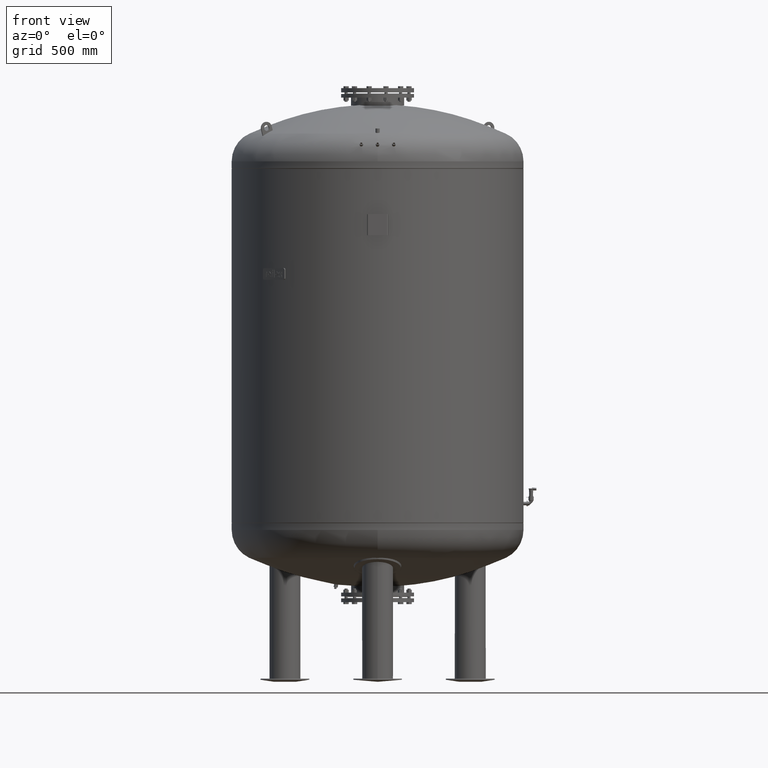
[diagram: clean part render]
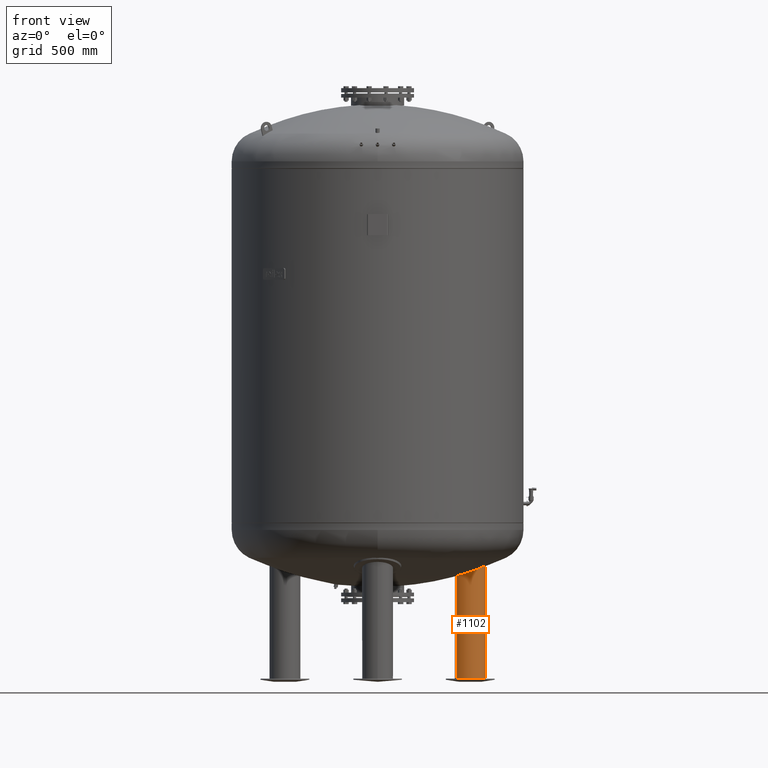
[diagram: same view with one face highlighted and labeled with its STEP entity id]
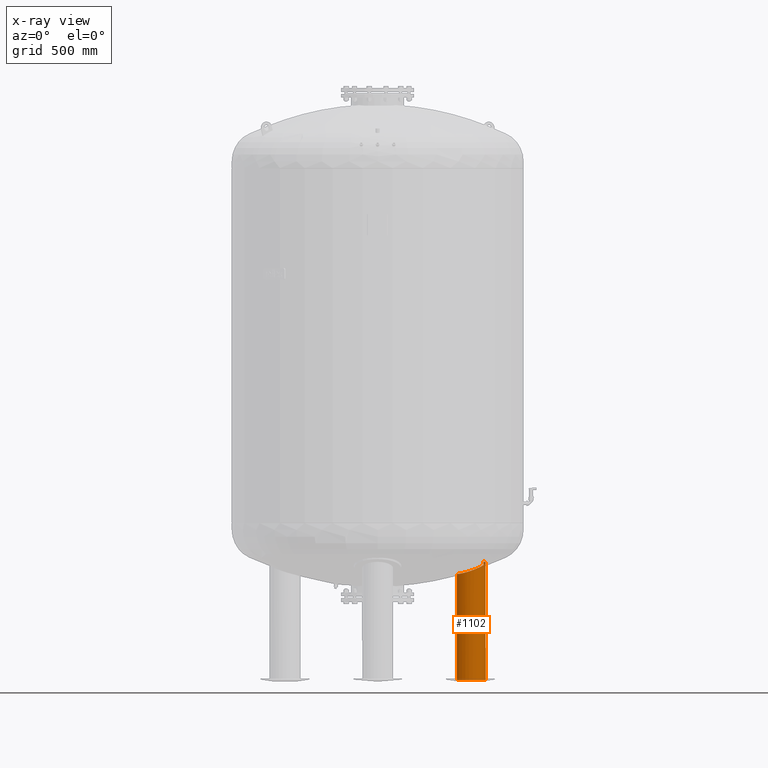
[diagram: x-ray of the same camera — body ghosted, the highlighted face saturated]
A machine part, front view. The second image highlights one B-rep face of the part: STEP entity #1102.
The next image is the same camera in x-ray: the body ghosted, the highlighted face saturated — about 0% of this face is hidden behind the body in this view.
In plain terms, the highlighted cylindrical surface (edge-blend (fillet) strip) has radius 79.5 mm, axis along (-0, 0, -1).
Its self-contained STEP definition (entity closure, byte-faithful):
#692=CARTESIAN_POINT('',(545.162991682304100,314.749999999999890,11.631170282581067));
#693=VERTEX_POINT('',#692);
#694=CARTESIAN_POINT('',(545.162991682304780,314.750000000000110,619.974328976416250));
#695=VERTEX_POINT('',#694);
#696=CARTESIAN_POINT('',(545.162991682304100,314.749999999999890,11.631170282581067));
#697=DIRECTION('',(0.0,0.0,1.0));
#698=VECTOR('',#697,608.343158693835220);
#699=LINE('',#696,#698);
#700=EDGE_CURVE('',#693,#695,#699,.T.);
#702=CARTESIAN_POINT('',(407.464952480578400,235.249999999999890,11.631170282581067));
#703=VERTEX_POINT('',#702);
#711=CARTESIAN_POINT('',(407.464952480578400,235.249999999999770,557.801446445446690));
#712=VERTEX_POINT('',#711);
#713=CARTESIAN_POINT('',(407.464952480578400,235.249999999999890,11.631170282581067));
#714=DIRECTION('',(0.0,0.0,1.0));
#715=VECTOR('',#714,546.170276162865660);
#716=LINE('',#713,#715);
#717=EDGE_CURVE('',#703,#712,#716,.T.);
#799=CARTESIAN_POINT('',(515.420540091886320,205.783482184925870,588.259208461118190));
#800=VERTEX_POINT('',#799);
#801=CARTESIAN_POINT('',(515.420540091886320,205.783482184925870,588.259208461118190));
#802=CARTESIAN_POINT('',(507.708228941500290,201.426111573967430,584.797146556691930));
#803=CARTESIAN_POINT('',(499.283486312880770,198.366555777918390,581.360502151042060));
#804=CARTESIAN_POINT('',(479.925573561073750,194.860951505136140,574.174236989335670));
#805=CARTESIAN_POINT('',(468.965119054899450,195.082291216989570,570.549958778381670));
#806=CARTESIAN_POINT('',(448.359184238433670,199.884482817816410,564.600364334074580));
#807=CARTESIAN_POINT('',(438.859336090417680,204.104772989114110,562.252334812652180));
#808=CARTESIAN_POINT('',(422.302850190856590,215.836268519620430,559.003880738072780));
#809=CARTESIAN_POINT('',(415.336604423659480,223.022492172788360,558.070588206412370));
#810=CARTESIAN_POINT('',(409.021872087655820,232.640314101676890,557.818088260262240));
#811=CARTESIAN_POINT('',(408.224060820283850,233.935185787180670,557.801446445446690));
#812=CARTESIAN_POINT('',(407.464952480578400,235.249999999999770,557.801446445446690));
#813=B_SPLINE_CURVE_WITH_KNOTS('',3,(#801,#802,#803,#804,#805,#806,#807,#808,#809,#810,#811,#812),.UNSPECIFIED.,.F.,.U.,(4,2,2,2,2,4),(13.058196146459959,15.908544671985489,19.326182717890447,22.493256912797680,25.489178793934588,25.946274642103887),.UNSPECIFIED.);
#814=EDGE_CURVE('',#800,#712,#813,.T.);
#1065=CARTESIAN_POINT('',(545.162991682304210,314.749999999999770,619.974328976416360));
#1066=CARTESIAN_POINT('',(549.959092765766400,306.442909245206520,619.974328976416020));
#1067=CARTESIAN_POINT('',(553.188852139110510,297.378552472937940,619.280247607236110));
#1068=CARTESIAN_POINT('',(556.329116497824770,278.439221662717100,616.585819491894090));
#1069=CARTESIAN_POINT('',(556.134967740473370,268.779055016763720,614.592514188904490));
#1070=CARTESIAN_POINT('',(552.308019648920090,249.549274365694880,609.453155597640030));
#1071=CARTESIAN_POINT('',(548.478270259849300,240.209973609872800,606.286372499794770));
#1072=CARTESIAN_POINT('',(537.320267391746820,222.915168943893090,599.055880090259170));
#1073=CARTESIAN_POINT('',(529.808676421816360,215.249135725733570,594.989155554557560));
#1074=CARTESIAN_POINT('',(519.240728592011920,208.048608236553040,589.995750597807050));
#1075=CARTESIAN_POINT('',(517.352997851607820,206.875299473535590,589.126690109794940));
#1076=CARTESIAN_POINT('',(515.420540091886320,205.783482184925870,588.259208461118190));
#1077=B_SPLINE_CURVE_WITH_KNOTS('',3,(#1065,#1066,#1067,#1068,#1069,#1070,#1071,#1072,#1073,#1074,#1075,#1076),.UNSPECIFIED.,.F.,.U.,(4,2,2,2,2,4),(0.0,2.877660650077480,5.813761654146234,8.951189755024860,12.343990246483170,13.058196146459959),.UNSPECIFIED.);
#1078=EDGE_CURVE('',#695,#800,#1077,.T.);
#1084=CARTESIAN_POINT('',(476.313972081441250,274.999999999999890,15.815585141290533));
#1085=DIRECTION('',(-9.184851E-017,1.590863E-016,-1.0));
#1086=DIRECTION('',(0.866025403784439,0.500000000000000,0.0));
#1087=AXIS2_PLACEMENT_3D('',#1084,#1085,#1086);
#1088=CYLINDRICAL_SURFACE('',#1087,79.500000000000000);
#1089=ORIENTED_EDGE('',*,*,#700,.T.);
#1090=ORIENTED_EDGE('',*,*,#1078,.T.);
#1091=ORIENTED_EDGE('',*,*,#814,.T.);
#1092=ORIENTED_EDGE('',*,*,#717,.F.);
#1093=CARTESIAN_POINT('',(476.313972081441250,274.999999999999890,11.631170282581067));
#1094=DIRECTION('',(0.0,0.0,-1.0));
#1095=DIRECTION('',(0.866025403784439,0.500000000000000,0.0));
#1096=AXIS2_PLACEMENT_3D('',#1093,#1094,#1095);
#1097=CIRCLE('',#1096,79.500000000000000);
#1098=EDGE_CURVE('',#693,#703,#1097,.T.);
#1099=ORIENTED_EDGE('',*,*,#1098,.F.);
#1100=EDGE_LOOP('',(#1089,#1090,#1091,#1092,#1099));
#1101=FACE_OUTER_BOUND('',#1100,.T.);
#1102=ADVANCED_FACE('',(#1101),#1088,.T.);